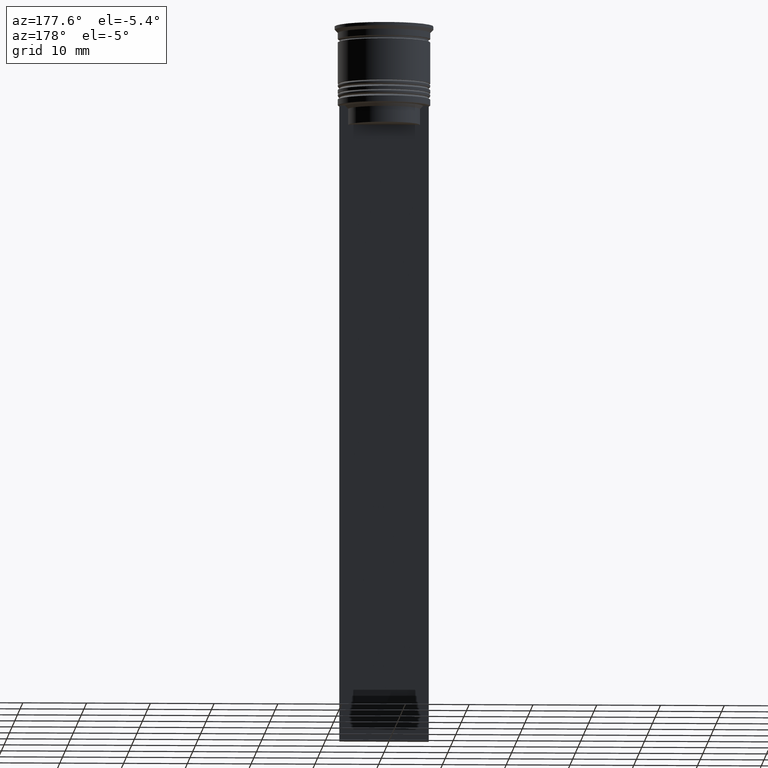
[diagram: clean part render]
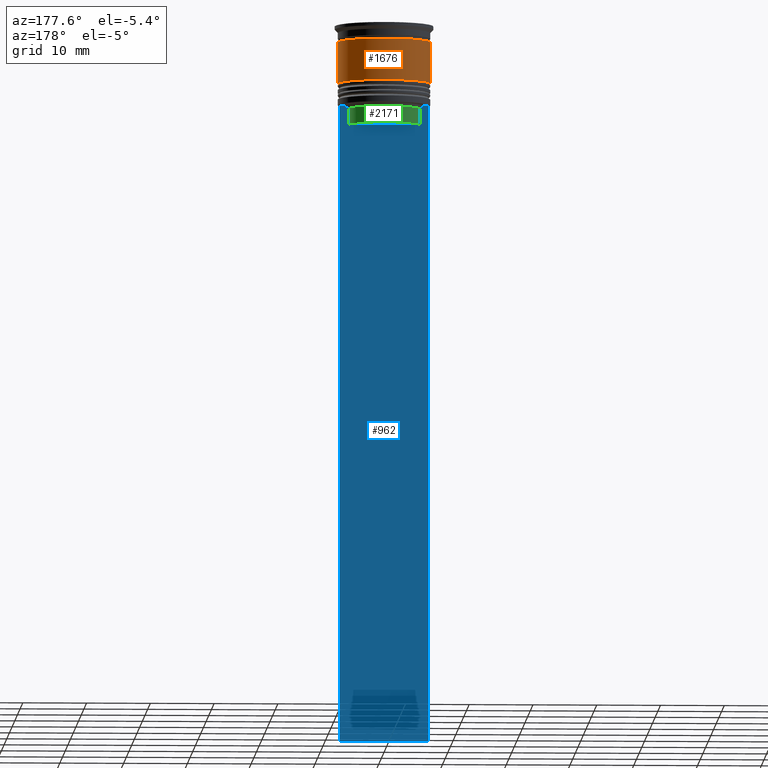
[diagram: same view with three faces highlighted in distinct colors, each labeled with its STEP entity id]
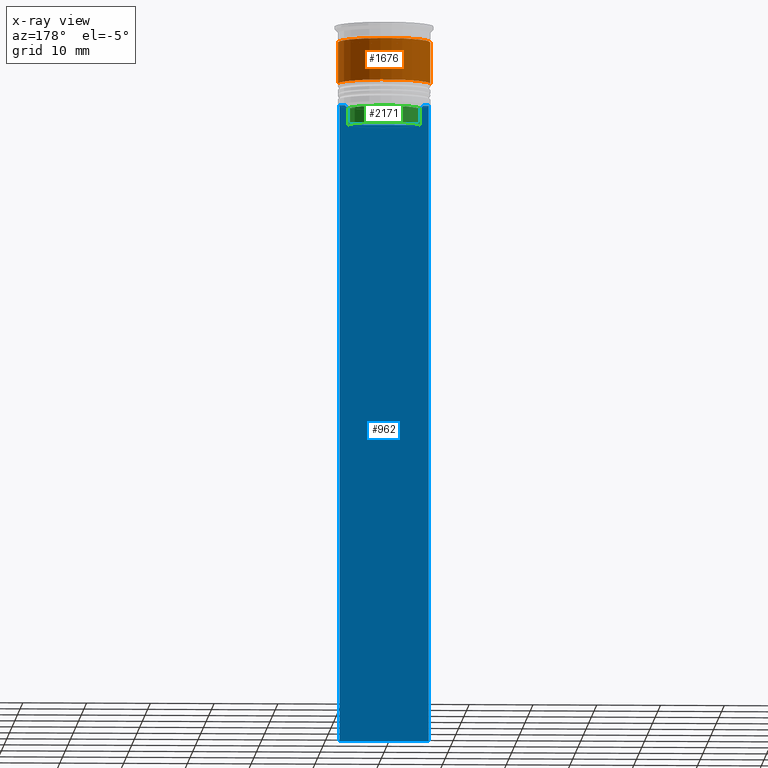
[diagram: x-ray of the same camera — body ghosted, the three highlighted faces saturated]
A machine part, auxiliary view with three faces highlighted in distinct colors.
The next image is the same camera in x-ray (body ghosted, the three faces saturated) — at least one of them is partly hidden behind the body in this view.
Their STEP definitions:

[orange] entity #1676 — the highlighted cylindrical surface (partial cylindrical patch) has radius 7.25 mm, axis along (-0, -0, 1).
#259 = VECTOR ( 'NONE', #2083, 1000.000000000000000 ) ;
#357 = EDGE_CURVE ( 'NONE', #1551, #786, #2265, .T. ) ;
#395 = EDGE_CURVE ( 'NONE', #1664, #786, #743, .T. ) ;
#411 = LINE ( 'NONE', #2040, #491 ) ;
#417 = EDGE_LOOP ( 'NONE', ( #768, #2317, #759, #1037 ) ) ;
#481 = DIRECTION ( 'NONE',  ( 1.000000000000000000, 0.000000000000000000, 0.000000000000000000 ) ) ;
#491 = VECTOR ( 'NONE', #1090, 1000.000000000000000 ) ;
#492 = AXIS2_PLACEMENT_3D ( 'NONE', #1817, #1967, #536 ) ;
#536 = DIRECTION ( 'NONE',  ( 1.000000000000000000, 0.000000000000000000, 0.000000000000000000 ) ) ;
#664 = DIRECTION ( 'NONE',  ( -0.000000000000000000, -0.000000000000000000, 1.000000000000000000 ) ) ;
#736 = FACE_OUTER_BOUND ( 'NONE', #417, .T. ) ;
#743 = CIRCLE ( 'NONE', #1530, 7.249999999999997335 ) ;
#759 = ORIENTED_EDGE ( 'NONE', *, *, #395, .F. ) ;
#768 = ORIENTED_EDGE ( 'NONE', *, *, #1529, .T. ) ;
#786 = VERTEX_POINT ( 'NONE', #1866 ) ;
#795 = CARTESIAN_POINT ( 'NONE',  ( 0.000000000000000000, 0.000000000000000000, -9.000000000000001776 ) ) ;
#887 = CYLINDRICAL_SURFACE ( 'NONE', #492, 7.249999999999999112 ) ;
#1037 = ORIENTED_EDGE ( 'NONE', *, *, #1441, .F. ) ;
#1062 = CARTESIAN_POINT ( 'NONE',  ( 7.249999999999997335, 0.000000000000000000, -2.500000000000000444 ) ) ;
#1084 = CIRCLE ( 'NONE', #1839, 7.250000000000000888 ) ;
#1090 = DIRECTION ( 'NONE',  ( -0.000000000000000000, -0.000000000000000000, 1.000000000000000000 ) ) ;
#1158 = CARTESIAN_POINT ( 'NONE',  ( 7.250000000000000888, 0.000000000000000000, -9.000000000000001776 ) ) ;
#1178 = CARTESIAN_POINT ( 'NONE',  ( -7.249999999999999112, 8.878689293818310074E-16, 0.000000000000000000 ) ) ;
#1441 = EDGE_CURVE ( 'NONE', #1729, #1664, #411, .T. ) ;
#1529 = EDGE_CURVE ( 'NONE', #1729, #1551, #1084, .T. ) ;
#1530 = AXIS2_PLACEMENT_3D ( 'NONE', #2241, #664, #1711 ) ;
#1551 = VERTEX_POINT ( 'NONE', #1726 ) ;
#1664 = VERTEX_POINT ( 'NONE', #1062 ) ;
#1676 = ADVANCED_FACE ( 'NONE', ( #736 ), #887, .T. ) ;
#1711 = DIRECTION ( 'NONE',  ( 1.000000000000000000, 0.000000000000000000, 0.000000000000000000 ) ) ;
#1726 = CARTESIAN_POINT ( 'NONE',  ( -7.250000000000000888, 8.878689293818312046E-16, -9.000000000000001776 ) ) ;
#1729 = VERTEX_POINT ( 'NONE', #1158 ) ;
#1817 = CARTESIAN_POINT ( 'NONE',  ( 0.000000000000000000, 0.000000000000000000, 0.000000000000000000 ) ) ;
#1839 = AXIS2_PLACEMENT_3D ( 'NONE', #795, #2253, #481 ) ;
#1866 = CARTESIAN_POINT ( 'NONE',  ( -7.249999999999997335, 8.878689293818308102E-16, -2.500000000000000444 ) ) ;
#1967 = DIRECTION ( 'NONE',  ( -0.000000000000000000, -0.000000000000000000, 1.000000000000000000 ) ) ;
#2040 = CARTESIAN_POINT ( 'NONE',  ( 7.249999999999999112, 0.000000000000000000, 0.000000000000000000 ) ) ;
#2083 = DIRECTION ( 'NONE',  ( -0.000000000000000000, -0.000000000000000000, 1.000000000000000000 ) ) ;
#2241 = CARTESIAN_POINT ( 'NONE',  ( 0.000000000000000000, 0.000000000000000000, -2.500000000000000444 ) ) ;
#2253 = DIRECTION ( 'NONE',  ( -0.000000000000000000, -0.000000000000000000, 1.000000000000000000 ) ) ;
#2265 = LINE ( 'NONE', #1178, #259 ) ;
#2317 = ORIENTED_EDGE ( 'NONE', *, *, #357, .T. ) ;

[blue] entity #962 — the highlighted planar face has unit normal (0, -1, -0).
#14 = PLANE ( 'NONE',  #1688 ) ;
#36 = LINE ( 'NONE', #76, #1727 ) ;
#76 = CARTESIAN_POINT ( 'NONE',  ( 7.000000000000012434, 0.4999999999999978351, -12.50000000000000000 ) ) ;
#88 = DIRECTION ( 'NONE',  ( 1.000000000000000000, 0.000000000000000000, 0.000000000000000000 ) ) ;
#91 = CARTESIAN_POINT ( 'NONE',  ( -6.999999999999987566, 0.4999999999999978351, -112.5000000000000000 ) ) ;
#147 = VECTOR ( 'NONE', #2199, 1000.000000000000000 ) ;
#183 = VECTOR ( 'NONE', #1755, 1000.000000000000000 ) ;
#184 = EDGE_CURVE ( 'NONE', #808, #583, #2195, .T. ) ;
#196 = ORIENTED_EDGE ( 'NONE', *, *, #1808, .T. ) ;
#283 = ORIENTED_EDGE ( 'NONE', *, *, #728, .T. ) ;
#320 = LINE ( 'NONE', #1035, #183 ) ;
#418 = CARTESIAN_POINT ( 'NONE',  ( 7.000000000000012434, 0.4999999999999978351, -112.5000000000000000 ) ) ;
#442 = ORIENTED_EDGE ( 'NONE', *, *, #884, .T. ) ;
#454 = ORIENTED_EDGE ( 'NONE', *, *, #2312, .T. ) ;
#510 = CARTESIAN_POINT ( 'NONE',  ( 7.000000000000012434, 0.4999999999999978351, 1.535668847618198329 ) ) ;
#511 = CARTESIAN_POINT ( 'NONE',  ( 7.000000000000012434, 0.4999999999999978351, -12.50000000000000000 ) ) ;
#564 = DIRECTION ( 'NONE',  ( 1.000000000000000000, 0.000000000000000000, 0.000000000000000000 ) ) ;
#568 = VERTEX_POINT ( 'NONE', #699 ) ;
#583 = VERTEX_POINT ( 'NONE', #2331 ) ;
#585 = CARTESIAN_POINT ( 'NONE',  ( 0.000000000000000000, 0.4999999999999978351, -15.50000000000000000 ) ) ;
#634 = VERTEX_POINT ( 'NONE', #1462 ) ;
#646 = CARTESIAN_POINT ( 'NONE',  ( -5.627832620112292794, 0.4999999999999978351, -13.00000000000000000 ) ) ;
#699 = CARTESIAN_POINT ( 'NONE',  ( 7.000000000000012434, 0.4999999999999978351, -112.5000000000000000 ) ) ;
#728 = EDGE_CURVE ( 'NONE', #1552, #1558, #2158, .T. ) ;
#746 = VECTOR ( 'NONE', #2172, 1000.000000000000000 ) ;
#747 = ORIENTED_EDGE ( 'NONE', *, *, #1097, .T. ) ;
#802 = DIRECTION ( 'NONE',  ( 1.000000000000000000, 0.000000000000000000, 0.000000000000000000 ) ) ;
#808 = VERTEX_POINT ( 'NONE', #1691 ) ;
#844 = EDGE_CURVE ( 'NONE', #1760, #1552, #320, .T. ) ;
#874 = VERTEX_POINT ( 'NONE', #1791 ) ;
#884 = EDGE_CURVE ( 'NONE', #874, #634, #1612, .T. ) ;
#894 = ORIENTED_EDGE ( 'NONE', *, *, #915, .F. ) ;
#909 = DIRECTION ( 'NONE',  ( 0.000000000000000000, 0.000000000000000000, -1.000000000000000000 ) ) ;
#915 = EDGE_CURVE ( 'NONE', #808, #1506, #1974, .T. ) ;
#962 = ADVANCED_FACE ( 'NONE', ( #1231 ), #14, .F. ) ;
#982 = LINE ( 'NONE', #418, #147 ) ;
#1014 = EDGE_CURVE ( 'NONE', #2055, #568, #2005, .T. ) ;
#1035 = CARTESIAN_POINT ( 'NONE',  ( 5.627832620112292794, 0.4999999999999978351, 0.000000000000000000 ) ) ;
#1078 = ORIENTED_EDGE ( 'NONE', *, *, #844, .T. ) ;
#1089 = CARTESIAN_POINT ( 'NONE',  ( 7.000000000000012434, 0.4999999999999978351, -12.50000000000000000 ) ) ;
#1097 = EDGE_CURVE ( 'NONE', #568, #1506, #982, .T. ) ;
#1190 = CARTESIAN_POINT ( 'NONE',  ( 5.627832620112292794, 0.4999999999999978351, -13.00000000000000000 ) ) ;
#1200 = CARTESIAN_POINT ( 'NONE',  ( 5.962396079681187011, 0.4999999999999978351, -12.66669137279835411 ) ) ;
#1231 = FACE_OUTER_BOUND ( 'NONE', #1334, .T. ) ;
#1286 = ORIENTED_EDGE ( 'NONE', *, *, #1848, .T. ) ;
#1302 = DIRECTION ( 'NONE',  ( 0.000000000000000000, 0.000000000000000000, -1.000000000000000000 ) ) ;
#1324 = CARTESIAN_POINT ( 'NONE',  ( 5.627832620112292794, 0.4999999999999978351, -15.50000000000000000 ) ) ;
#1334 = EDGE_LOOP ( 'NONE', ( #1477, #454, #442, #196, #1078, #283, #1286, #1672, #747, #894 ) ) ;
#1368 = CARTESIAN_POINT ( 'NONE',  ( -6.129641098791995368, 0.4999999999999978351, -12.50000000000000000 ) ) ;
#1394 = CARTESIAN_POINT ( 'NONE',  ( -5.795128834036803234, 0.4999999999999978351, -12.83336016107156574 ) ) ;
#1462 = CARTESIAN_POINT ( 'NONE',  ( -5.627832620112292794, 0.4999999999999978351, -15.50000000000000000 ) ) ;
#1477 = ORIENTED_EDGE ( 'NONE', *, *, #184, .T. ) ;
#1506 = VERTEX_POINT ( 'NONE', #91 ) ;
#1513 = CARTESIAN_POINT ( 'NONE',  ( 6.129641098791995368, 0.4999999999999978351, -12.50000000000000000 ) ) ;
#1552 = VERTEX_POINT ( 'NONE', #1190 ) ;
#1558 = VERTEX_POINT ( 'NONE', #1892 ) ;
#1612 = LINE ( 'NONE', #2337, #746 ) ;
#1672 = ORIENTED_EDGE ( 'NONE', *, *, #1014, .T. ) ;
#1674 = LINE ( 'NONE', #585, #1916 ) ;
#1688 = AXIS2_PLACEMENT_3D ( 'NONE', #510, #1945, #909 ) ;
#1691 = CARTESIAN_POINT ( 'NONE',  ( -6.999999999999987566, 0.4999999999999980571, -12.50000000000000000 ) ) ;
#1727 = VECTOR ( 'NONE', #802, 1000.000000000000000 ) ;
#1755 = DIRECTION ( 'NONE',  ( -0.000000000000000000, -0.000000000000000000, 1.000000000000000000 ) ) ;
#1760 = VERTEX_POINT ( 'NONE', #1324 ) ;
#1780 = DIRECTION ( 'NONE',  ( 0.000000000000000000, 0.000000000000000000, -1.000000000000000000 ) ) ;
#1791 = CARTESIAN_POINT ( 'NONE',  ( -5.627832620112292794, 0.4999999999999978351, -13.00000000000000000 ) ) ;
#1808 = EDGE_CURVE ( 'NONE', #634, #1760, #1674, .T. ) ;
#1831 = VECTOR ( 'NONE', #564, 1000.000000000000000 ) ;
#1837 = CARTESIAN_POINT ( 'NONE',  ( 7.000000000000012434, 0.4999999999999978351, 1.535668847618198329 ) ) ;
#1848 = EDGE_CURVE ( 'NONE', #1558, #2055, #36, .T. ) ;
#1892 = CARTESIAN_POINT ( 'NONE',  ( 6.129641098791995368, 0.4999999999999978351, -12.50000000000000000 ) ) ;
#1893 = B_SPLINE_CURVE_WITH_KNOTS ( 'NONE', 3,
 ( #1368, #2097, #1394, #646 ),
 .UNSPECIFIED., .F., .F.,
 ( 4, 4 ),
 ( 0.01045365750109871796, 0.01116204421161398619 ),
 .UNSPECIFIED. ) ;
#1912 = VECTOR ( 'NONE', #1302, 1000.000000000000000 ) ;
#1916 = VECTOR ( 'NONE', #88, 1000.000000000000000 ) ;
#1945 = DIRECTION ( 'NONE',  ( 0.000000000000000000, -1.000000000000000000, -0.000000000000000000 ) ) ;
#1974 = LINE ( 'NONE', #2135, #1989 ) ;
#1989 = VECTOR ( 'NONE', #1780, 1000.000000000000000 ) ;
#2005 = LINE ( 'NONE', #1837, #1912 ) ;
#2048 = CARTESIAN_POINT ( 'NONE',  ( 5.795128760752291441, 0.4999999999999978351, -12.83336023406855020 ) ) ;
#2055 = VERTEX_POINT ( 'NONE', #511 ) ;
#2097 = CARTESIAN_POINT ( 'NONE',  ( -5.962396146966409738, 0.4999999999999978351, -12.66669130573587054 ) ) ;
#2135 = CARTESIAN_POINT ( 'NONE',  ( -6.999999999999987566, 0.4999999999999978351, 1.535668847618198329 ) ) ;
#2158 = B_SPLINE_CURVE_WITH_KNOTS ( 'NONE', 3,
 ( #2165, #2048, #1200, #1513 ),
 .UNSPECIFIED., .F., .F.,
 ( 4, 4 ),
 ( 0.02651134470867373347, 0.02721991123504337307 ),
 .UNSPECIFIED. ) ;
#2165 = CARTESIAN_POINT ( 'NONE',  ( 5.627832620112292794, 0.4999999999999978351, -13.00000000000000000 ) ) ;
#2172 = DIRECTION ( 'NONE',  ( 0.000000000000000000, 0.000000000000000000, -1.000000000000000000 ) ) ;
#2195 = LINE ( 'NONE', #1089, #1831 ) ;
#2199 = DIRECTION ( 'NONE',  ( -1.000000000000000000, 0.000000000000000000, 0.000000000000000000 ) ) ;
#2312 = EDGE_CURVE ( 'NONE', #583, #874, #1893, .T. ) ;
#2331 = CARTESIAN_POINT ( 'NONE',  ( -6.129641098791995368, 0.4999999999999978351, -12.50000000000000000 ) ) ;
#2337 = CARTESIAN_POINT ( 'NONE',  ( -5.627832620112292794, 0.4999999999999978351, 0.000000000000000000 ) ) ;

[green] entity #2171 — the highlighted cylindrical surface (edge-blend (fillet) strip) has radius 5.65 mm, axis along (-0, -0, 1).
#71 = CARTESIAN_POINT ( 'NONE',  ( 0.000000000000000000, 0.000000000000000000, 0.000000000000000000 ) ) ;
#128 = ORIENTED_EDGE ( 'NONE', *, *, #943, .T. ) ;
#149 = CIRCLE ( 'NONE', #1801, 5.649999999999998579 ) ;
#183 = VECTOR ( 'NONE', #1755, 1000.000000000000000 ) ;
#206 = DIRECTION ( 'NONE',  ( -0.000000000000000000, -0.000000000000000000, 1.000000000000000000 ) ) ;
#320 = LINE ( 'NONE', #1035, #183 ) ;
#353 = DIRECTION ( 'NONE',  ( 1.000000000000000000, 0.000000000000000000, 0.000000000000000000 ) ) ;
#493 = ORIENTED_EDGE ( 'NONE', *, *, #1641, .F. ) ;
#634 = VERTEX_POINT ( 'NONE', #1462 ) ;
#648 = EDGE_LOOP ( 'NONE', ( #1753, #128, #1076, #493 ) ) ;
#688 = AXIS2_PLACEMENT_3D ( 'NONE', #71, #1118, #2006 ) ;
#746 = VECTOR ( 'NONE', #2172, 1000.000000000000000 ) ;
#844 = EDGE_CURVE ( 'NONE', #1760, #1552, #320, .T. ) ;
#874 = VERTEX_POINT ( 'NONE', #1791 ) ;
#884 = EDGE_CURVE ( 'NONE', #874, #634, #1612, .T. ) ;
#943 = EDGE_CURVE ( 'NONE', #1760, #634, #149, .T. ) ;
#1035 = CARTESIAN_POINT ( 'NONE',  ( 5.627832620112292794, 0.4999999999999978351, 0.000000000000000000 ) ) ;
#1076 = ORIENTED_EDGE ( 'NONE', *, *, #884, .F. ) ;
#1098 = DIRECTION ( 'NONE',  ( -0.000000000000000000, -0.000000000000000000, 1.000000000000000000 ) ) ;
#1118 = DIRECTION ( 'NONE',  ( -0.000000000000000000, -0.000000000000000000, 1.000000000000000000 ) ) ;
#1190 = CARTESIAN_POINT ( 'NONE',  ( 5.627832620112292794, 0.4999999999999978351, -13.00000000000000000 ) ) ;
#1324 = CARTESIAN_POINT ( 'NONE',  ( 5.627832620112292794, 0.4999999999999978351, -15.50000000000000000 ) ) ;
#1389 = CIRCLE ( 'NONE', #1724, 5.649999999999997691 ) ;
#1432 = DIRECTION ( 'NONE',  ( 1.000000000000000000, 0.000000000000000000, 0.000000000000000000 ) ) ;
#1456 = FACE_OUTER_BOUND ( 'NONE', #648, .T. ) ;
#1462 = CARTESIAN_POINT ( 'NONE',  ( -5.627832620112292794, 0.4999999999999978351, -15.50000000000000000 ) ) ;
#1552 = VERTEX_POINT ( 'NONE', #1190 ) ;
#1612 = LINE ( 'NONE', #2337, #746 ) ;
#1641 = EDGE_CURVE ( 'NONE', #1552, #874, #1389, .T. ) ;
#1724 = AXIS2_PLACEMENT_3D ( 'NONE', #2174, #1098, #353 ) ;
#1753 = ORIENTED_EDGE ( 'NONE', *, *, #844, .F. ) ;
#1755 = DIRECTION ( 'NONE',  ( -0.000000000000000000, -0.000000000000000000, 1.000000000000000000 ) ) ;
#1760 = VERTEX_POINT ( 'NONE', #1324 ) ;
#1791 = CARTESIAN_POINT ( 'NONE',  ( -5.627832620112292794, 0.4999999999999978351, -13.00000000000000000 ) ) ;
#1801 = AXIS2_PLACEMENT_3D ( 'NONE', #1962, #206, #1432 ) ;
#1826 = CYLINDRICAL_SURFACE ( 'NONE', #688, 5.649999999999998579 ) ;
#1962 = CARTESIAN_POINT ( 'NONE',  ( 0.000000000000000000, 0.000000000000000000, -15.50000000000000000 ) ) ;
#2006 = DIRECTION ( 'NONE',  ( 1.000000000000000000, 0.000000000000000000, 0.000000000000000000 ) ) ;
#2171 = ADVANCED_FACE ( 'NONE', ( #1456 ), #1826, .T. ) ;
#2172 = DIRECTION ( 'NONE',  ( 0.000000000000000000, 0.000000000000000000, -1.000000000000000000 ) ) ;
#2174 = CARTESIAN_POINT ( 'NONE',  ( 0.000000000000000000, 0.000000000000000000, -13.00000000000000000 ) ) ;
#2337 = CARTESIAN_POINT ( 'NONE',  ( -5.627832620112292794, 0.4999999999999978351, 0.000000000000000000 ) ) ;